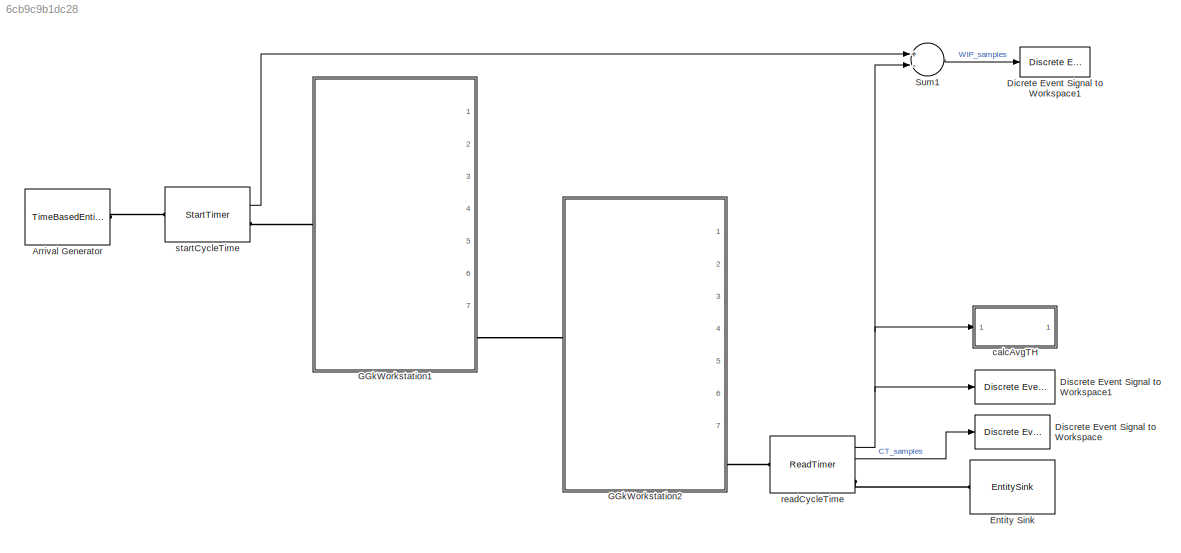
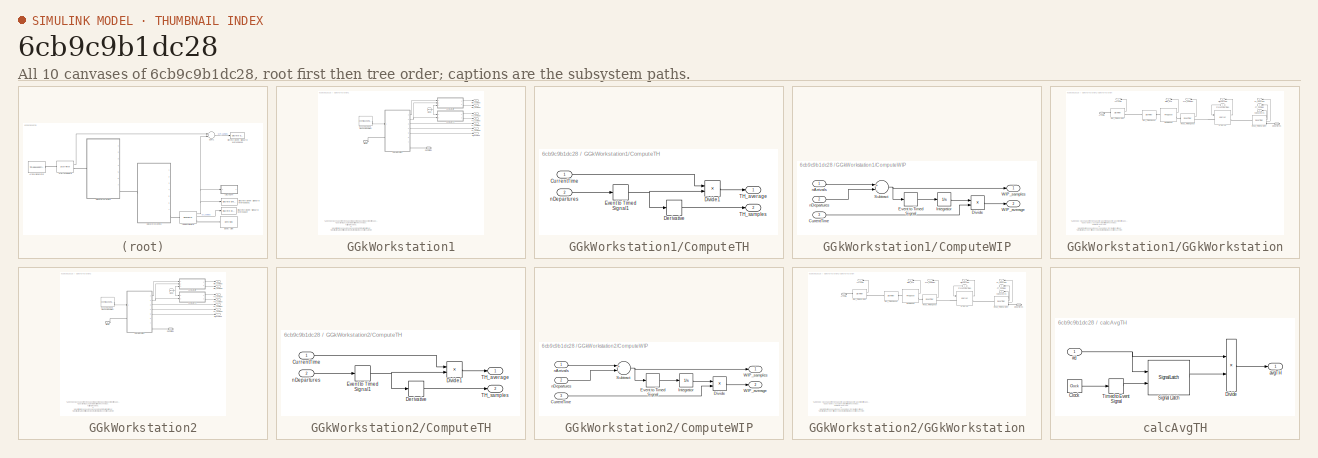
[diagram: thumbnail index - all 10 canvases of the model, root first then tree order]
MODEL slx_6cb9c9b1dc28
KIND model
CONFIG AbsTol = auto
CONFIG FixedStep = auto
CONFIG InitFcn = se_randomizeseeds(gcs, 'Mode', 'All')
CONFIG MaxStep = auto
CONFIG MinStep = auto
CONFIG RelTol = 1e-3
CONFIG SampleTimeConstraint = Unconstrained
CONFIG Solver = ode45
CONFIG SolverMode = SingleTasking
CONFIG SolverName = ode45
CONFIG StartTime = 0.0
CONFIG StopTime = 100000
BLOCK [TimeBasedEntityGenerator] Arrival Generator
  Distribution = Exponential
  InitialSeed = 58965
  Maximum = 9
  Mean = 5
  Minimum = 1
  Ports = [0, 0, 0, 0, 0, 0, 1]
BLOCK [Reference] Dicrete Event Signal to Workspace1  REF=simeventslib/SimEvents
Sinks/Discrete Event Signal
to Workspace
  Decimation = 1
  MaxDataPoints = inf
  Ports = [1]
  SaveFormat = Structure With Time
  SourceBlock = simeventslib/SimEvents\nSinks/Discrete Event Signal\nto Workspace
  SourceType = Discrete Event Signal to Workspace
  VariableName = WIP
  isMonitorOnly = off
  isRecordIC = off
BLOCK [Reference] Discrete Event Signal to Workspace  REF=simeventslib/SimEvents
Sinks/Discrete Event Signal
to Workspace
  Decimation = 1
  MaxDataPoints = inf
  Ports = [1]
  SaveFormat = Structure With Time
  SourceBlock = simeventslib/SimEvents\nSinks/Discrete Event Signal\nto Workspace
  SourceType = Discrete Event Signal to Workspace
  VariableName = CycleTime
  isMonitorOnly = off
  isRecordIC = off
BLOCK [Reference] Discrete Event Signal to Workspace1  REF=simeventslib/SimEvents
Sinks/Discrete Event Signal
to Workspace
  Decimation = 1
  MaxDataPoints = inf
  Ports = [1]
  SaveFormat = Structure With Time
  SourceBlock = simeventslib/SimEvents\nSinks/Discrete Event Signal\nto Workspace
  SourceType = Discrete Event Signal to Workspace
  VariableName = Departures
  isMonitorOnly = off
  isRecordIC = off
BLOCK [EntitySink] Entity Sink
  Ports = [0, 0, 0, 0, 0, 1]
BLOCK [SubSystem] GGkWorkstation1
  CopyFcn = set_param(gcb, 'LinkStatus', 'none');
  InitFcn = se_randomizeseeds(gcs, 'Mode', 'All')
  Ports = [0, 7, 0, 0, 0, 1, 1]
  RequestExecContextInheritance = off
BLOCK [PMIOPort] GGkWorkstation1/Arrivals
  Port = 1
  Side = Left
BLOCK [Outport] GGkWorkstation1/CT_average
  IconDisplay = Port number
  Port = 4
BLOCK [Outport] GGkWorkstation1/CT_samples
  IconDisplay = Port number
  Port = 3
BLOCK [Clock] GGkWorkstation1/Clock
BLOCK [SubSystem] GGkWorkstation1/ComputeTH
  Ports = [2, 2]
  RequestExecContextInheritance = off
BLOCK [Inport] GGkWorkstation1/ComputeTH/CurrentTime
  IconDisplay = Port number
BLOCK [Derivative] GGkWorkstation1/ComputeTH/Derivative
BLOCK [Product] GGkWorkstation1/ComputeTH/Divide1
  InputSameDT = off
  Inputs = /*
  OutDataTypeStr = Inherit: Inherit via internal rule
  Ports = [2, 1]
  RndMeth = Floor
  SaturateOnIntegerOverflow = off
BLOCK [EventToTimedSignal] GGkWorkstation1/ComputeTH/Event to Timed Signal1
  InputPortMap = u0
  OutputPortMap = o0
  Ports = [1, 1]
BLOCK [Outport] GGkWorkstation1/ComputeTH/TH_average
  IconDisplay = Port number
BLOCK [Outport] GGkWorkstation1/ComputeTH/TH_samples
  IconDisplay = Port number
  Port = 2
BLOCK [Inport] GGkWorkstation1/ComputeTH/nDepartures
  IconDisplay = Port number
  Port = 2
BLOCK [SubSystem] GGkWorkstation1/ComputeWIP
  Ports = [3, 2]
  RequestExecContextInheritance = off
BLOCK [Inport] GGkWorkstation1/ComputeWIP/CurrentTime
  IconDisplay = Port number
  Port = 3
BLOCK [Product] GGkWorkstation1/ComputeWIP/Divide
  InputSameDT = off
  Inputs = */
  OutDataTypeStr = Inherit: Inherit via internal rule
  Ports = [2, 1]
  RndMeth = Floor
  SaturateOnIntegerOverflow = off
BLOCK [EventToTimedSignal] GGkWorkstation1/ComputeWIP/Event to Timed Signal
  InputPortMap = u0
  OutputPortMap = o0
  Ports = [1, 1]
BLOCK [Integrator] GGkWorkstation1/ComputeWIP/Integrator
  Ports = [1, 1]
BLOCK [Sum] GGkWorkstation1/ComputeWIP/Subtract
  InputSameDT = off
  Inputs = +-
  OutDataTypeStr = Inherit: Inherit via internal rule
  Ports = [2, 1]
  SaturateOnIntegerOverflow = off
BLOCK [Outport] GGkWorkstation1/ComputeWIP/WIP_average
  IconDisplay = Port number
  Port = 2
BLOCK [Outport] GGkWorkstation1/ComputeWIP/WIP_samples
  IconDisplay = Port number
BLOCK [Inport] GGkWorkstation1/ComputeWIP/nArrivals
  IconDisplay = Port number
BLOCK [Inport] GGkWorkstation1/ComputeWIP/nDepartures
  IconDisplay = Port number
  Port = 2
BLOCK [PMIOPort] GGkWorkstation1/Departures
  Port = 2
  Side = Right
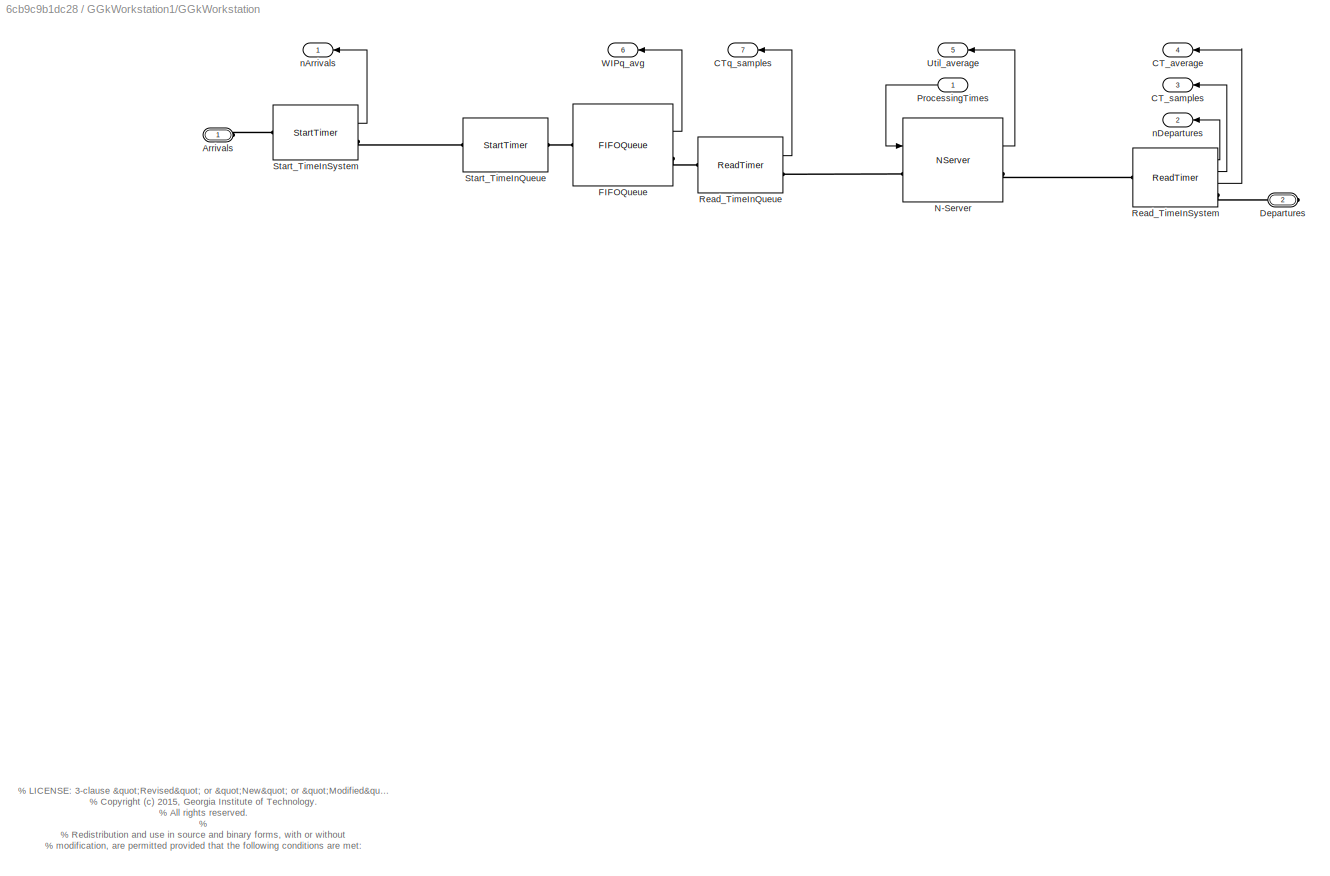
BLOCK [SubSystem] GGkWorkstation1/GGkWorkstation
  Ports = [1, 7, 0, 0, 0, 1, 1]
  RequestExecContextInheritance = off
BLOCK [PMIOPort] GGkWorkstation1/GGkWorkstation/Arrivals
  Port = 1
  Side = Left
BLOCK [Outport] GGkWorkstation1/GGkWorkstation/CT_average
  IconDisplay = Port number
  Port = 4
BLOCK [Outport] GGkWorkstation1/GGkWorkstation/CT_samples
  IconDisplay = Port number
  Port = 3
BLOCK [Outport] GGkWorkstation1/GGkWorkstation/CTq_samples
  IconDisplay = Port number
  Port = 7
BLOCK [PMIOPort] GGkWorkstation1/GGkWorkstation/Departures
  Port = 2
  Side = Right
BLOCK [FIFOQueue] GGkWorkstation1/GGkWorkstation/FIFOQueue
  Capacity = Capacity
  OutputPortMap = o3
  Ports = [0, 1, 0, 0, 0, 1, 1]
  StatAverageQueueLength = on
BLOCK [NServer] GGkWorkstation1/GGkWorkstation/N-Server
  InputPortMap = u0
  NumberOfServers = NumberOfServers
  OutputPortMap = o5
  Ports = [1, 1, 0, 0, 0, 1, 1]
  ServiceTimeFrom = Signal port t
  StatUtilization = on
BLOCK [Inport] GGkWorkstation1/GGkWorkstation/ProcessingTimes
  IconDisplay = Port number
BLOCK [ReadTimer] GGkWorkstation1/GGkWorkstation/Read_TimeInQueue
  OutputPortMap = o2
  Ports = [0, 1, 0, 0, 0, 1, 1]
  StatTimeElapsed = on
  TimerTag = TimeInQueue
BLOCK [ReadTimer] GGkWorkstation1/GGkWorkstation/Read_TimeInSystem
  OutputPortMap = o0,o2,o3
  Ports = [0, 3, 0, 0, 0, 1, 1]
  StatAverageTimeElapsed = on
  StatNumberDeparted = on
  StatTimeElapsed = on
  TimerTag = TimeInSystem
BLOCK [StartTimer] GGkWorkstation1/GGkWorkstation/Start_TimeInQueue
  Ports = [0, 0, 0, 0, 0, 1, 1]
  TimerStartedOption = Restart
  TimerTag = TimeInQueue
BLOCK [StartTimer] GGkWorkstation1/GGkWorkstation/Start_TimeInSystem
  OutputPortMap = o0
  Ports = [0, 1, 0, 0, 0, 1, 1]
  StatNumberDeparted = on
  TimerStartedOption = Restart
  TimerTag = TimeInSystem
BLOCK [Outport] GGkWorkstation1/GGkWorkstation/Util_average
  IconDisplay = Port number
  Port = 5
BLOCK [Outport] GGkWorkstation1/GGkWorkstation/WIPq_avg
  IconDisplay = Port number
  Port = 6
BLOCK [Outport] GGkWorkstation1/GGkWorkstation/nArrivals
  IconDisplay = Port number
BLOCK [Outport] GGkWorkstation1/GGkWorkstation/nDepartures
  IconDisplay = Port number
  Port = 2
BLOCK [EventBasedRandomNumber] GGkWorkstation1/RandomNumbers_ProcessingTimes
  OutputPortMap = o0
  Ports = [0, 1]
  Seed = 52531
  cdfVecCont = 40
  maxBeta = 40
  maxTri = 40
  maxUnid = 40
  maxUnif = 40
  meanExp = 4.4817
  meanNorm = 95
  meanPoiss = 40
  minBeta = 40
  minTri = 40
  minUnid = 40
  minUnif = 40
  modeTri = 40
  numTrialBino = 40
  numValueUnid = 40
  pOneBern = 40
  pSuccessBino = 40
  pSuccessGeo = 40
  probVecDisc = 40
  scaleGam = 40
  scaleLogl = 40
  scaleWbl = 40
  shape1Beta = 40
  shape2Beta = 40
  shapeGam = 40
  shapeWbl = 40
  stdNorm = eps
  thresholdGam = 40
  thresholdLogl = 40
  thresholdWbl = 40
  valueVecCont = 40
  valueVecDisc = 40
BLOCK [Outport] GGkWorkstation1/TH_average
  IconDisplay = Port number
  Port = 6
BLOCK [Outport] GGkWorkstation1/TH_samples
  IconDisplay = Port number
  Port = 5
BLOCK [Outport] GGkWorkstation1/Util_average
  IconDisplay = Port number
  Port = 7
BLOCK [Outport] GGkWorkstation1/WIP_average
  IconDisplay = Port number
  Port = 2
BLOCK [Outport] GGkWorkstation1/WIP_samples
  IconDisplay = Port number
BLOCK [SubSystem] GGkWorkstation2
  CopyFcn = set_param(gcb, 'LinkStatus', 'none');
  InitFcn = se_randomizeseeds(gcs, 'Mode', 'All')
  Ports = [0, 7, 0, 0, 0, 1, 1]
  RequestExecContextInheritance = off
BLOCK [PMIOPort] GGkWorkstation2/Arrivals
  Port = 1
  Side = Left
BLOCK [Outport] GGkWorkstation2/CT_average
  IconDisplay = Port number
  Port = 4
BLOCK [Outport] GGkWorkstation2/CT_samples
  IconDisplay = Port number
  Port = 3
BLOCK [Clock] GGkWorkstation2/Clock
BLOCK [SubSystem] GGkWorkstation2/ComputeTH
  Ports = [2, 2]
  RequestExecContextInheritance = off
BLOCK [Inport] GGkWorkstation2/ComputeTH/CurrentTime
  IconDisplay = Port number
BLOCK [Derivative] GGkWorkstation2/ComputeTH/Derivative
BLOCK [Product] GGkWorkstation2/ComputeTH/Divide1
  InputSameDT = off
  Inputs = /*
  OutDataTypeStr = Inherit: Inherit via internal rule
  Ports = [2, 1]
  RndMeth = Floor
  SaturateOnIntegerOverflow = off
BLOCK [EventToTimedSignal] GGkWorkstation2/ComputeTH/Event to Timed Signal1
  InputPortMap = u0
  OutputPortMap = o0
  Ports = [1, 1]
BLOCK [Outport] GGkWorkstation2/ComputeTH/TH_average
  IconDisplay = Port number
BLOCK [Outport] GGkWorkstation2/ComputeTH/TH_samples
  IconDisplay = Port number
  Port = 2
BLOCK [Inport] GGkWorkstation2/ComputeTH/nDepartures
  IconDisplay = Port number
  Port = 2
BLOCK [SubSystem] GGkWorkstation2/ComputeWIP
  Ports = [3, 2]
  RequestExecContextInheritance = off
BLOCK [Inport] GGkWorkstation2/ComputeWIP/CurrentTime
  IconDisplay = Port number
  Port = 3
BLOCK [Product] GGkWorkstation2/ComputeWIP/Divide
  InputSameDT = off
  Inputs = */
  OutDataTypeStr = Inherit: Inherit via internal rule
  Ports = [2, 1]
  RndMeth = Floor
  SaturateOnIntegerOverflow = off
BLOCK [EventToTimedSignal] GGkWorkstation2/ComputeWIP/Event to Timed Signal
  InputPortMap = u0
  OutputPortMap = o0
  Ports = [1, 1]
BLOCK [Integrator] GGkWorkstation2/ComputeWIP/Integrator
  Ports = [1, 1]
BLOCK [Sum] GGkWorkstation2/ComputeWIP/Subtract
  InputSameDT = off
  Inputs = +-
  OutDataTypeStr = Inherit: Inherit via internal rule
  Ports = [2, 1]
  SaturateOnIntegerOverflow = off
BLOCK [Outport] GGkWorkstation2/ComputeWIP/WIP_average
  IconDisplay = Port number
  Port = 2
BLOCK [Outport] GGkWorkstation2/ComputeWIP/WIP_samples
  IconDisplay = Port number
BLOCK [Inport] GGkWorkstation2/ComputeWIP/nArrivals
  IconDisplay = Port number
BLOCK [Inport] GGkWorkstation2/ComputeWIP/nDepartures
  IconDisplay = Port number
  Port = 2
BLOCK [PMIOPort] GGkWorkstation2/Departures
  Port = 2
  Side = Right
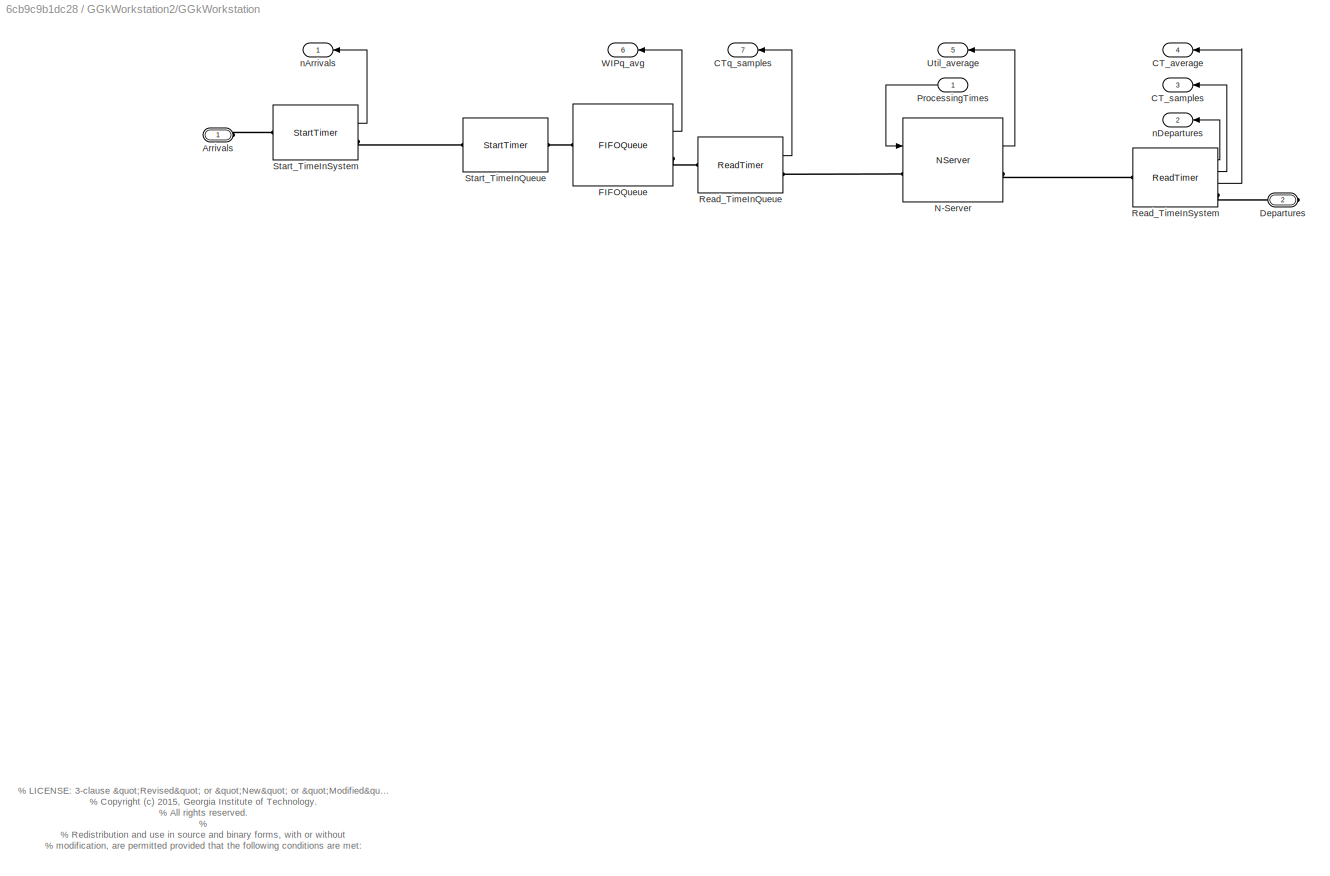
BLOCK [SubSystem] GGkWorkstation2/GGkWorkstation
  Ports = [1, 7, 0, 0, 0, 1, 1]
  RequestExecContextInheritance = off
BLOCK [PMIOPort] GGkWorkstation2/GGkWorkstation/Arrivals
  Port = 1
  Side = Left
BLOCK [Outport] GGkWorkstation2/GGkWorkstation/CT_average
  IconDisplay = Port number
  Port = 4
BLOCK [Outport] GGkWorkstation2/GGkWorkstation/CT_samples
  IconDisplay = Port number
  Port = 3
BLOCK [Outport] GGkWorkstation2/GGkWorkstation/CTq_samples
  IconDisplay = Port number
  Port = 7
BLOCK [PMIOPort] GGkWorkstation2/GGkWorkstation/Departures
  Port = 2
  Side = Right
BLOCK [FIFOQueue] GGkWorkstation2/GGkWorkstation/FIFOQueue
  Capacity = Capacity
  OutputPortMap = o3
  Ports = [0, 1, 0, 0, 0, 1, 1]
  StatAverageQueueLength = on
BLOCK [NServer] GGkWorkstation2/GGkWorkstation/N-Server
  InputPortMap = u0
  NumberOfServers = NumberOfServers
  OutputPortMap = o5
  Ports = [1, 1, 0, 0, 0, 1, 1]
  ServiceTimeFrom = Signal port t
  StatUtilization = on
BLOCK [Inport] GGkWorkstation2/GGkWorkstation/ProcessingTimes
  IconDisplay = Port number
BLOCK [ReadTimer] GGkWorkstation2/GGkWorkstation/Read_TimeInQueue
  OutputPortMap = o2
  Ports = [0, 1, 0, 0, 0, 1, 1]
  StatTimeElapsed = on
  TimerTag = TimeInQueue
BLOCK [ReadTimer] GGkWorkstation2/GGkWorkstation/Read_TimeInSystem
  OutputPortMap = o0,o2,o3
  Ports = [0, 3, 0, 0, 0, 1, 1]
  StatAverageTimeElapsed = on
  StatNumberDeparted = on
  StatTimeElapsed = on
  TimerTag = TimeInSystem
BLOCK [StartTimer] GGkWorkstation2/GGkWorkstation/Start_TimeInQueue
  Ports = [0, 0, 0, 0, 0, 1, 1]
  TimerStartedOption = Restart
  TimerTag = TimeInQueue
BLOCK [StartTimer] GGkWorkstation2/GGkWorkstation/Start_TimeInSystem
  OutputPortMap = o0
  Ports = [0, 1, 0, 0, 0, 1, 1]
  StatNumberDeparted = on
  TimerStartedOption = Restart
  TimerTag = TimeInSystem
BLOCK [Outport] GGkWorkstation2/GGkWorkstation/Util_average
  IconDisplay = Port number
  Port = 5
BLOCK [Outport] GGkWorkstation2/GGkWorkstation/WIPq_avg
  IconDisplay = Port number
  Port = 6
BLOCK [Outport] GGkWorkstation2/GGkWorkstation/nArrivals
  IconDisplay = Port number
BLOCK [Outport] GGkWorkstation2/GGkWorkstation/nDepartures
  IconDisplay = Port number
  Port = 2
BLOCK [EventBasedRandomNumber] GGkWorkstation2/RandomNumbers_ProcessingTimes
  OutputPortMap = o0
  Ports = [0, 1]
  Seed = 55748
  cdfVecCont = 40
  maxBeta = 40
  maxTri = 40
  maxUnid = 40
  maxUnif = 40
  meanExp = 4.4817
  meanNorm = 95
  meanPoiss = 40
  minBeta = 40
  minTri = 40
  minUnid = 40
  minUnif = 40
  modeTri = 40
  numTrialBino = 40
  numValueUnid = 40
  pOneBern = 40
  pSuccessBino = 40
  pSuccessGeo = 40
  probVecDisc = 40
  scaleGam = 40
  scaleLogl = 40
  scaleWbl = 40
  shape1Beta = 40
  shape2Beta = 40
  shapeGam = 40
  shapeWbl = 40
  stdNorm = eps
  thresholdGam = 40
  thresholdLogl = 40
  thresholdWbl = 40
  valueVecCont = 40
  valueVecDisc = 40
BLOCK [Outport] GGkWorkstation2/TH_average
  IconDisplay = Port number
  Port = 6
BLOCK [Outport] GGkWorkstation2/TH_samples
  IconDisplay = Port number
  Port = 5
BLOCK [Outport] GGkWorkstation2/Util_average
  IconDisplay = Port number
  Port = 7
BLOCK [Outport] GGkWorkstation2/WIP_average
  IconDisplay = Port number
  Port = 2
BLOCK [Outport] GGkWorkstation2/WIP_samples
  IconDisplay = Port number
BLOCK [Sum] Sum1
  InputSameDT = off
  Inputs = +-
  OutDataTypeStr = Inherit: Inherit via internal rule
  Ports = [2, 1]
  SaturateOnIntegerOverflow = off
BLOCK [SubSystem] calcAvgTH
  Ports = [1, 1]
  RequestExecContextInheritance = off
BLOCK [Inport] calcAvgTH/#d
  IconDisplay = Port number
BLOCK [Clock] calcAvgTH/Clock
  Decimation = 1
  DisplayTime = on
BLOCK [Product] calcAvgTH/Divide
  InputSameDT = off
  Inputs = */
  OutDataTypeStr = Inherit: Inherit via internal rule
  Ports = [2, 1]
  RndMeth = Floor
  SaturateOnIntegerOverflow = off
BLOCK [SignalLatch] calcAvgTH/Signal Latch
  InputPortMap = u0,u2
  OutputPortMap = o2
  Ports = [2, 1]
  ReadMemoryUpon = Write to memory event
BLOCK [TimedToEventSignal] calcAvgTH/Timed to Event Signal
  InputPortMap = u0
  OutputPortMap = o0
  Ports = [1, 1]
BLOCK [Outport] calcAvgTH/avgTH
  IconDisplay = Port number
BLOCK [ReadTimer] readCycleTime
  OutputPortMap = o0,o2,o3
  Ports = [0, 3, 0, 0, 0, 1, 1]
  StatAverageTimeElapsed = on
  StatNumberDeparted = on
  StatTimeElapsed = on
  TimerTag = CycleTime
BLOCK [StartTimer] startCycleTime
  OutputPortMap = o0
  Ports = [0, 1, 0, 0, 0, 1, 1]
  StatNumberDeparted = on
  TimerStartedOption = Restart
  TimerTag = CycleTime
ANNOTATION GGkWorkstation1: % LICENSE: 3-clause "Revised" or "New" or "Modified" BSD License. % <copyright redacted>
ANNOTATION GGkWorkstation1/GGkWorkstation: % LICENSE: 3-clause "Revised" or "New" or "Modified" BSD License. % <copyright redacted>
ANNOTATION GGkWorkstation2: % LICENSE: 3-clause "Revised" or "New" or "Modified" BSD License. % <copyright redacted>
ANNOTATION GGkWorkstation2/GGkWorkstation: % LICENSE: 3-clause "Revised" or "New" or "Modified" BSD License. % <copyright redacted>
NET GGkWorkstation1/Clock:1 -> GGkWorkstation1/ComputeTH:1, GGkWorkstation1/ComputeWIP:3
LINE GGkWorkstation1/ComputeTH/CurrentTime:1 -> GGkWorkstation1/ComputeTH/Divide1:1
LINE GGkWorkstation1/ComputeTH/Derivative:1 -> GGkWorkstation1/ComputeTH/TH_samples:1
LINE GGkWorkstation1/ComputeTH/Divide1:1 -> GGkWorkstation1/ComputeTH/TH_average:1
NET GGkWorkstation1/ComputeTH/Event to Timed Signal1:1 -> GGkWorkstation1/ComputeTH/Derivative:1, GGkWorkstation1/ComputeTH/Divide1:2
LINE GGkWorkstation1/ComputeTH/nDepartures:1 -> GGkWorkstation1/ComputeTH/Event to Timed Signal1:1
LINE GGkWorkstation1/ComputeTH:1 -> GGkWorkstation1/TH_average:1
LINE GGkWorkstation1/ComputeTH:2 -> GGkWorkstation1/TH_samples:1
LINE GGkWorkstation1/ComputeWIP/CurrentTime:1 -> GGkWorkstation1/ComputeWIP/Divide:2
LINE GGkWorkstation1/ComputeWIP/Divide:1 -> GGkWorkstation1/ComputeWIP/WIP_average:1
LINE GGkWorkstation1/ComputeWIP/Event to Timed Signal:1 -> GGkWorkstation1/ComputeWIP/Integrator:1
LINE GGkWorkstation1/ComputeWIP/Integrator:1 -> GGkWorkstation1/ComputeWIP/Divide:1
NET GGkWorkstation1/ComputeWIP/Subtract:1 -> GGkWorkstation1/ComputeWIP/Event to Timed Signal:1, GGkWorkstation1/ComputeWIP/WIP_samples:1
LINE GGkWorkstation1/ComputeWIP/nArrivals:1 -> GGkWorkstation1/ComputeWIP/Subtract:1
LINE GGkWorkstation1/ComputeWIP/nDepartures:1 -> GGkWorkstation1/ComputeWIP/Subtract:2
LINE GGkWorkstation1/ComputeWIP:1 -> GGkWorkstation1/WIP_samples:1
LINE GGkWorkstation1/ComputeWIP:2 -> GGkWorkstation1/WIP_average:1
LINE GGkWorkstation1/GGkWorkstation/FIFOQueue:1 -> GGkWorkstation1/GGkWorkstation/WIPq_avg:1
LINE GGkWorkstation1/GGkWorkstation/N-Server:1 -> GGkWorkstation1/GGkWorkstation/Util_average:1
LINE GGkWorkstation1/GGkWorkstation/ProcessingTimes:1 -> GGkWorkstation1/GGkWorkstation/N-Server:1
LINE GGkWorkstation1/GGkWorkstation/Read_TimeInQueue:1 -> GGkWorkstation1/GGkWorkstation/CTq_samples:1
LINE GGkWorkstation1/GGkWorkstation/Read_TimeInSystem:1 -> GGkWorkstation1/GGkWorkstation/nDepartures:1
LINE GGkWorkstation1/GGkWorkstation/Read_TimeInSystem:2 -> GGkWorkstation1/GGkWorkstation/CT_samples:1
LINE GGkWorkstation1/GGkWorkstation/Read_TimeInSystem:3 -> GGkWorkstation1/GGkWorkstation/CT_average:1
LINE GGkWorkstation1/GGkWorkstation/Start_TimeInSystem:1 -> GGkWorkstation1/GGkWorkstation/nArrivals:1
LINE GGkWorkstation1/GGkWorkstation:1 -> GGkWorkstation1/ComputeWIP:1
NET GGkWorkstation1/GGkWorkstation:2 -> GGkWorkstation1/ComputeTH:2, GGkWorkstation1/ComputeWIP:2
LINE GGkWorkstation1/GGkWorkstation:3 -> GGkWorkstation1/CT_samples:1
LINE GGkWorkstation1/GGkWorkstation:4 -> GGkWorkstation1/CT_average:1
LINE GGkWorkstation1/GGkWorkstation:5 -> GGkWorkstation1/Util_average:1
LINE GGkWorkstation1/RandomNumbers_ProcessingTimes:1 -> GGkWorkstation1/GGkWorkstation:1
NET GGkWorkstation2/Clock:1 -> GGkWorkstation2/ComputeTH:1, GGkWorkstation2/ComputeWIP:3
LINE GGkWorkstation2/ComputeTH/CurrentTime:1 -> GGkWorkstation2/ComputeTH/Divide1:1
LINE GGkWorkstation2/ComputeTH/Derivative:1 -> GGkWorkstation2/ComputeTH/TH_samples:1
LINE GGkWorkstation2/ComputeTH/Divide1:1 -> GGkWorkstation2/ComputeTH/TH_average:1
NET GGkWorkstation2/ComputeTH/Event to Timed Signal1:1 -> GGkWorkstation2/ComputeTH/Derivative:1, GGkWorkstation2/ComputeTH/Divide1:2
LINE GGkWorkstation2/ComputeTH/nDepartures:1 -> GGkWorkstation2/ComputeTH/Event to Timed Signal1:1
LINE GGkWorkstation2/ComputeTH:1 -> GGkWorkstation2/TH_average:1
LINE GGkWorkstation2/ComputeTH:2 -> GGkWorkstation2/TH_samples:1
LINE GGkWorkstation2/ComputeWIP/CurrentTime:1 -> GGkWorkstation2/ComputeWIP/Divide:2
LINE GGkWorkstation2/ComputeWIP/Divide:1 -> GGkWorkstation2/ComputeWIP/WIP_average:1
LINE GGkWorkstation2/ComputeWIP/Event to Timed Signal:1 -> GGkWorkstation2/ComputeWIP/Integrator:1
LINE GGkWorkstation2/ComputeWIP/Integrator:1 -> GGkWorkstation2/ComputeWIP/Divide:1
NET GGkWorkstation2/ComputeWIP/Subtract:1 -> GGkWorkstation2/ComputeWIP/Event to Timed Signal:1, GGkWorkstation2/ComputeWIP/WIP_samples:1
LINE GGkWorkstation2/ComputeWIP/nArrivals:1 -> GGkWorkstation2/ComputeWIP/Subtract:1
LINE GGkWorkstation2/ComputeWIP/nDepartures:1 -> GGkWorkstation2/ComputeWIP/Subtract:2
LINE GGkWorkstation2/ComputeWIP:1 -> GGkWorkstation2/WIP_samples:1
LINE GGkWorkstation2/ComputeWIP:2 -> GGkWorkstation2/WIP_average:1
LINE GGkWorkstation2/GGkWorkstation/FIFOQueue:1 -> GGkWorkstation2/GGkWorkstation/WIPq_avg:1
LINE GGkWorkstation2/GGkWorkstation/N-Server:1 -> GGkWorkstation2/GGkWorkstation/Util_average:1
LINE GGkWorkstation2/GGkWorkstation/ProcessingTimes:1 -> GGkWorkstation2/GGkWorkstation/N-Server:1
LINE GGkWorkstation2/GGkWorkstation/Read_TimeInQueue:1 -> GGkWorkstation2/GGkWorkstation/CTq_samples:1
LINE GGkWorkstation2/GGkWorkstation/Read_TimeInSystem:1 -> GGkWorkstation2/GGkWorkstation/nDepartures:1
LINE GGkWorkstation2/GGkWorkstation/Read_TimeInSystem:2 -> GGkWorkstation2/GGkWorkstation/CT_samples:1
LINE GGkWorkstation2/GGkWorkstation/Read_TimeInSystem:3 -> GGkWorkstation2/GGkWorkstation/CT_average:1
LINE GGkWorkstation2/GGkWorkstation/Start_TimeInSystem:1 -> GGkWorkstation2/GGkWorkstation/nArrivals:1
LINE GGkWorkstation2/GGkWorkstation:1 -> GGkWorkstation2/ComputeWIP:1
NET GGkWorkstation2/GGkWorkstation:2 -> GGkWorkstation2/ComputeTH:2, GGkWorkstation2/ComputeWIP:2
LINE GGkWorkstation2/GGkWorkstation:3 -> GGkWorkstation2/CT_samples:1
LINE GGkWorkstation2/GGkWorkstation:4 -> GGkWorkstation2/CT_average:1
LINE GGkWorkstation2/GGkWorkstation:5 -> GGkWorkstation2/Util_average:1
LINE GGkWorkstation2/RandomNumbers_ProcessingTimes:1 -> GGkWorkstation2/GGkWorkstation:1
LINE Sum1:1 -> Dicrete Event Signal to Workspace1:1
NET calcAvgTH/#d:1 -> calcAvgTH/Divide:1, calcAvgTH/Signal Latch:1
LINE calcAvgTH/Clock:1 -> calcAvgTH/Timed to Event Signal:1
LINE calcAvgTH/Divide:1 -> calcAvgTH/avgTH:1
LINE calcAvgTH/Signal Latch:1 -> calcAvgTH/Divide:2
LINE calcAvgTH/Timed to Event Signal:1 -> calcAvgTH/Signal Latch:2
NET readCycleTime:1 -> Discrete Event Signal to Workspace1:1, Sum1:2, calcAvgTH:1
LINE readCycleTime:2 -> Discrete Event Signal to Workspace:1
LINE startCycleTime:1 -> Sum1:1
PLINE Arrival Generator:RConn1 -- startCycleTime:LConn1
PLINE Entity Sink:LConn1 -- readCycleTime:RConn1
PLINE GGkWorkstation1/Arrivals:RConn1 -- GGkWorkstation1/GGkWorkstation:LConn1
PLINE GGkWorkstation1/Departures:RConn1 -- GGkWorkstation1/GGkWorkstation:RConn1
PLINE GGkWorkstation1/GGkWorkstation/Arrivals:RConn1 -- GGkWorkstation1/GGkWorkstation/Start_TimeInSystem:LConn1
PLINE GGkWorkstation1/GGkWorkstation/Departures:RConn1 -- GGkWorkstation1/GGkWorkstation/Read_TimeInSystem:RConn1
PLINE GGkWorkstation1/GGkWorkstation/FIFOQueue:LConn1 -- GGkWorkstation1/GGkWorkstation/Start_TimeInQueue:RConn1
PLINE GGkWorkstation1/GGkWorkstation/FIFOQueue:RConn1 -- GGkWorkstation1/GGkWorkstation/Read_TimeInQueue:LConn1
PLINE GGkWorkstation1/GGkWorkstation/N-Server:LConn1 -- GGkWorkstation1/GGkWorkstation/Read_TimeInQueue:RConn1
PLINE GGkWorkstation1/GGkWorkstation/N-Server:RConn1 -- GGkWorkstation1/GGkWorkstation/Read_TimeInSystem:LConn1
PLINE GGkWorkstation1/GGkWorkstation/Start_TimeInQueue:LConn1 -- GGkWorkstation1/GGkWorkstation/Start_TimeInSystem:RConn1
PLINE GGkWorkstation1:LConn1 -- startCycleTime:RConn1
PLINE GGkWorkstation1:RConn1 -- GGkWorkstation2:LConn1
PLINE GGkWorkstation2/Arrivals:RConn1 -- GGkWorkstation2/GGkWorkstation:LConn1
PLINE GGkWorkstation2/Departures:RConn1 -- GGkWorkstation2/GGkWorkstation:RConn1
PLINE GGkWorkstation2/GGkWorkstation/Arrivals:RConn1 -- GGkWorkstation2/GGkWorkstation/Start_TimeInSystem:LConn1
PLINE GGkWorkstation2/GGkWorkstation/Departures:RConn1 -- GGkWorkstation2/GGkWorkstation/Read_TimeInSystem:RConn1
PLINE GGkWorkstation2/GGkWorkstation/FIFOQueue:LConn1 -- GGkWorkstation2/GGkWorkstation/Start_TimeInQueue:RConn1
PLINE GGkWorkstation2/GGkWorkstation/FIFOQueue:RConn1 -- GGkWorkstation2/GGkWorkstation/Read_TimeInQueue:LConn1
PLINE GGkWorkstation2/GGkWorkstation/N-Server:LConn1 -- GGkWorkstation2/GGkWorkstation/Read_TimeInQueue:RConn1
PLINE GGkWorkstation2/GGkWorkstation/N-Server:RConn1 -- GGkWorkstation2/GGkWorkstation/Read_TimeInSystem:LConn1
PLINE GGkWorkstation2/GGkWorkstation/Start_TimeInQueue:LConn1 -- GGkWorkstation2/GGkWorkstation/Start_TimeInSystem:RConn1
PLINE GGkWorkstation2:RConn1 -- readCycleTime:LConn1
note: NET lines group one-source signal fan-out (src -> all destinations, sorted); 1:1 wires keep LINE
